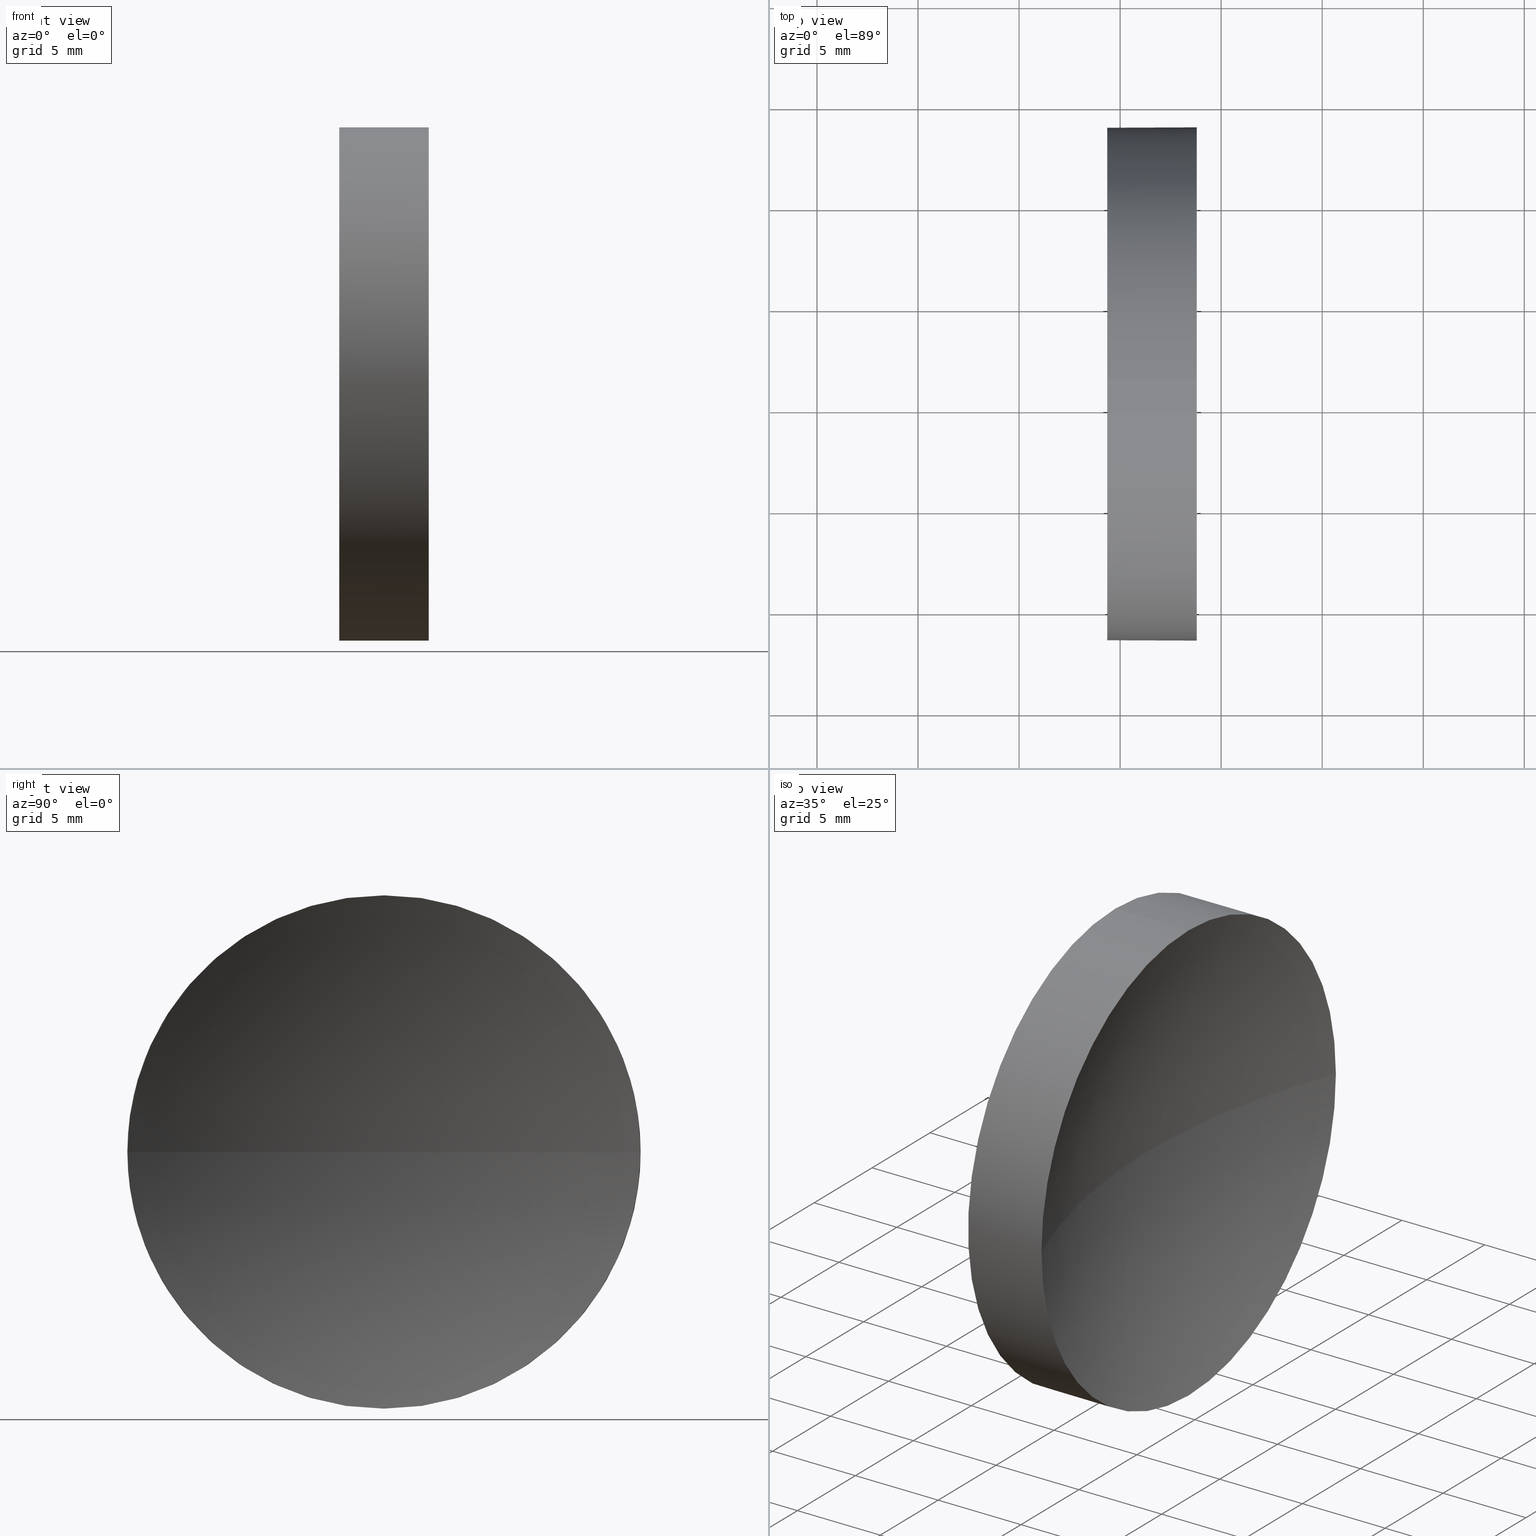
[diagram: canonical four-view strip — front | top / right | iso, engineering-drawing reading convention]
A machine part, canonical four-view strip (front | top / right | iso — engineering-drawing reading convention). The complete STEP part file that produces these views, byte-faithful:
ISO-10303-21;
HEADER;
FILE_DESCRIPTION (( 'STEP AP214' ),
    '1' );
FILE_NAME ('120266.STEP',
    '2019-06-25T03:13:47',
    ( '' ),
    ( '' ),
    'SwSTEP 2.0',
    'SolidWorks 2016',
    '' );
FILE_SCHEMA (( 'AUTOMOTIVE_DESIGN' ));
ENDSEC;

DATA;
#1 = ADVANCED_FACE ( 'NONE', ( #50 ), #66, .T. ) ;
#2 = CARTESIAN_POINT ( 'NONE',  ( 123.7938616566546800, 83.89398908659370600, 1.555301434917136700E-015 ) ) ;
#3 = SURFACE_SIDE_STYLE ('',( #171 ) ) ;
#4 = ORIENTED_EDGE ( 'NONE', *, *, #28, .F. ) ;
#5 = SPHERICAL_SURFACE ( 'NONE', #38, 34.38999999999999300 ) ;
#6 = PRESENTATION_LAYER_ASSIGNMENT (  '', '', ( #34 ) ) ;
#7 = VERTEX_POINT ( 'NONE', #57 ) ;
#8 = AXIS2_PLACEMENT_3D ( 'NONE', #119, #133, #65 ) ;
#9 = DIRECTION ( 'NONE',  ( -1.000000000000000000, -0.0000000000000000000, -0.0000000000000000000 ) ) ;
#10 = LINE ( 'NONE', #165, #155 ) ;
#11 = DIRECTION ( 'NONE',  ( 0.0000000000000000000, 0.0000000000000000000, 1.000000000000000000 ) ) ;
#12 = AXIS2_PLACEMENT_3D ( 'NONE', #39, #172, #85 ) ;
#13 = CARTESIAN_POINT ( 'NONE',  ( 155.7529307920347000, 71.19398908659371700, 0.0000000000000000000 ) ) ;
#14 = DIRECTION ( 'NONE',  ( -1.000000000000000000, -0.0000000000000000000, -0.0000000000000000000 ) ) ;
#15 = VERTEX_POINT ( 'NONE', #159 ) ;
#16 = APPLICATION_PROTOCOL_DEFINITION ( 'draft international standard', 'automotive_design', 1998, #123 ) ;
#17 = CIRCLE ( 'NONE', #76, 12.70000000000000300 ) ;
#18 = CARTESIAN_POINT ( 'NONE',  ( 111.9552297575605700, 71.19398908659370300, 0.0000000000000000000 ) ) ;
#19 = PRODUCT_DEFINITION_SHAPE ( 'NONE', 'NONE',  #177 ) ;
#20 =( LENGTH_UNIT ( ) NAMED_UNIT ( * ) SI_UNIT ( .MILLI., .METRE. ) );
#21 = EDGE_LOOP ( 'NONE', ( #102, #148 ) ) ;
#22 = CIRCLE ( 'NONE', #131, 12.70000000000000300 ) ;
#23 = AXIS2_PLACEMENT_3D ( 'NONE', #18, #114, #144 ) ;
#24 = EDGE_CURVE ( 'NONE', #15, #132, #129, .T. ) ;
#25 = ORIENTED_EDGE ( 'NONE', *, *, #126, .F. ) ;
#26 = CARTESIAN_POINT ( 'NONE',  ( 111.9552297575605700, 71.19398908659370300, -12.70000000000000300 ) ) ;
#27 = CARTESIAN_POINT ( 'NONE',  ( 155.7529307920347000, 71.19398908659371700, 0.0000000000000000000 ) ) ;
#28 = EDGE_CURVE ( 'NONE', #7, #118, #22, .T. ) ;
#29 = PLANE ( 'NONE',  #8 ) ;
#30 = CARTESIAN_POINT ( 'NONE',  ( 123.7938616566546800, 71.19398908659370300, 12.70000000000000300 ) ) ;
#31 = DIRECTION ( 'NONE',  ( -1.000000000000000000, -0.0000000000000000000, -0.0000000000000000000 ) ) ;
#32 = PRODUCT_CONTEXT ( 'NONE', #96, 'mechanical' ) ;
#33 = CIRCLE ( 'NONE', #173, 12.70000000000000300 ) ;
#34 = STYLED_ITEM ( 'NONE', ( #92 ), #48 ) ;
#35 = CARTESIAN_POINT ( 'NONE',  ( 111.9552297575605700, 71.19398908659370300, 0.0000000000000000000 ) ) ;
#36 = ORIENTED_EDGE ( 'NONE', *, *, #150, .T. ) ;
#37 = STYLED_ITEM ( 'NONE', ( #101 ), #103 ) ;
#38 = AXIS2_PLACEMENT_3D ( 'NONE', #27, #120, #64 ) ;
#39 = CARTESIAN_POINT ( 'NONE',  ( 0.0000000000000000000, 0.0000000000000000000, 0.0000000000000000000 ) ) ;
#40 = CARTESIAN_POINT ( 'NONE',  ( 121.3629307920347000, 71.19398908659371700, 0.0000000000000000000 ) ) ;
#41 = ORIENTED_EDGE ( 'NONE', *, *, #182, .T. ) ;
#42 =( NAMED_UNIT ( * ) SI_UNIT ( $, .STERADIAN. ) SOLID_ANGLE_UNIT ( ) );
#43 = CIRCLE ( 'NONE', #130, 34.38999999999999300 ) ;
#44 = ORIENTED_EDGE ( 'NONE', *, *, #126, .T. ) ;
#45 = AXIS2_PLACEMENT_3D ( 'NONE', #54, #67, #167 ) ;
#46 = CIRCLE ( 'NONE', #55, 12.70000000000000300 ) ;
#47 = AXIS2_PLACEMENT_3D ( 'NONE', #35, #74, #146 ) ;
#48 = MANIFOLD_SOLID_BREP ( '��ת1', #56 ) ;
#49 = VERTEX_POINT ( 'NONE', #2 ) ;
#50 = FACE_OUTER_BOUND ( 'NONE', #60, .T. ) ;
#51 = SHAPE_DEFINITION_REPRESENTATION ( #19, #103 ) ;
#52 = CIRCLE ( 'NONE', #112, 34.38999999999999300 ) ;
#53 = DIRECTION ( 'NONE',  ( -1.000000000000000000, -0.0000000000000000000, -0.0000000000000000000 ) ) ;
#54 = CARTESIAN_POINT ( 'NONE',  ( 119.3629307920347200, 71.19398908659370300, 0.0000000000000000000 ) ) ;
#55 = AXIS2_PLACEMENT_3D ( 'NONE', #78, #9, #138 ) ;
#56 = CLOSED_SHELL ( 'NONE', ( #75, #156, #128, #1, #161 ) ) ;
#57 = CARTESIAN_POINT ( 'NONE',  ( 123.7938616566546800, 71.19398908659370300, -12.70000000000000300 ) ) ;
#58 = ORIENTED_EDGE ( 'NONE', *, *, #59, .F. ) ;
#59 = EDGE_CURVE ( 'NONE', #118, #163, #33, .T. ) ;
#60 = EDGE_LOOP ( 'NONE', ( #106, #115, #143, #98, #121 ) ) ;
#61 = UNCERTAINTY_MEASURE_WITH_UNIT (LENGTH_MEASURE( 1.000000000000000100E-005 ), #104, 'distance_accuracy_value', 'NONE');
#62 = FACE_OUTER_BOUND ( 'NONE', #136, .T. ) ;
#63 =( GEOMETRIC_REPRESENTATION_CONTEXT ( 3 ) GLOBAL_UNCERTAINTY_ASSIGNED_CONTEXT ( ( #61 ) ) GLOBAL_UNIT_ASSIGNED_CONTEXT ( ( #104, #149, #69 ) ) REPRESENTATION_CONTEXT ( 'NONE', 'WORKASPACE' ) );
#64 = DIRECTION ( 'NONE',  ( 0.0000000000000000000, -1.000000000000000000, 0.0000000000000000000 ) ) ;
#65 = DIRECTION ( 'NONE',  ( 0.0000000000000000000, 0.0000000000000000000, -1.000000000000000000 ) ) ;
#66 = CYLINDRICAL_SURFACE ( 'NONE', #47, 12.70000000000000300 ) ;
#67 = DIRECTION ( 'NONE',  ( -1.000000000000000000, -0.0000000000000000000, -0.0000000000000000000 ) ) ;
#68 = CARTESIAN_POINT ( 'NONE',  ( 123.7938616566546800, 71.19398908659370300, 0.0000000000000000000 ) ) ;
#69 =( NAMED_UNIT ( * ) SI_UNIT ( $, .STERADIAN. ) SOLID_ANGLE_UNIT ( ) );
#70 = SURFACE_STYLE_FILL_AREA ( #170 ) ;
#71 = EDGE_LOOP ( 'NONE', ( #164, #44, #89, #4 ) ) ;
#72 = CARTESIAN_POINT ( 'NONE',  ( 119.3629307920347200, 71.19398908659370300, 0.0000000000000000000 ) ) ;
#73 = AXIS2_PLACEMENT_3D ( 'NONE', #72, #99, #145 ) ;
#74 = DIRECTION ( 'NONE',  ( -1.000000000000000000, -0.0000000000000000000, -0.0000000000000000000 ) ) ;
#75 = ADVANCED_FACE ( 'NONE', ( #62 ), #86, .T. ) ;
#76 = AXIS2_PLACEMENT_3D ( 'NONE', #68, #53, #81 ) ;
#77 = CARTESIAN_POINT ( 'NONE',  ( 155.7529307920347000, 71.19398908659371700, 0.0000000000000000000 ) ) ;
#78 = CARTESIAN_POINT ( 'NONE',  ( 123.7938616566546800, 71.19398908659370300, 0.0000000000000000000 ) ) ;
#79 = CIRCLE ( 'NONE', #45, 12.70000000000000300 ) ;
#80 = EDGE_CURVE ( 'NONE', #118, #154, #43, .T. ) ;
#81 = DIRECTION ( 'NONE',  ( 0.0000000000000000000, 0.0000000000000000000, 1.000000000000000000 ) ) ;
#82 = UNCERTAINTY_MEASURE_WITH_UNIT (LENGTH_MEASURE( 1.000000000000000100E-005 ), #186, 'distance_accuracy_value', 'NONE');
#83 = SURFACE_SIDE_STYLE ('',( #70 ) ) ;
#84 = ORIENTED_EDGE ( 'NONE', *, *, #182, .F. ) ;
#85 = DIRECTION ( 'NONE',  ( 1.000000000000000000, 0.0000000000000000000, 0.0000000000000000000 ) ) ;
#86 = CYLINDRICAL_SURFACE ( 'NONE', #23, 12.70000000000000300 ) ;
#87 =( NAMED_UNIT ( * ) SI_UNIT ( $, .STERADIAN. ) SOLID_ANGLE_UNIT ( ) );
#88 = DIRECTION ( 'NONE',  ( -1.000000000000000000, -0.0000000000000000000, -0.0000000000000000000 ) ) ;
#89 = ORIENTED_EDGE ( 'NONE', *, *, #80, .F. ) ;
#90 = SPHERICAL_SURFACE ( 'NONE', #140, 34.38999999999999300 ) ;
#91 = PRESENTATION_LAYER_ASSIGNMENT (  '', '', ( #37 ) ) ;
#92 = PRESENTATION_STYLE_ASSIGNMENT (( #100 ) ) ;
#93 = DIRECTION ( 'NONE',  ( -1.000000000000000000, -0.0000000000000000000, -0.0000000000000000000 ) ) ;
#94 = ORIENTED_EDGE ( 'NONE', *, *, #80, .T. ) ;
#95 = DIRECTION ( 'NONE',  ( 0.0000000000000000000, -1.000000000000000000, -1.224646799147353000E-016 ) ) ;
#96 = APPLICATION_CONTEXT ( 'automotive_design' ) ;
#97 = APPLICATION_PROTOCOL_DEFINITION ( 'draft international standard', 'automotive_design', 1998, #96 ) ;
#98 = ORIENTED_EDGE ( 'NONE', *, *, #168, .T. ) ;
#99 = DIRECTION ( 'NONE',  ( -1.000000000000000000, -0.0000000000000000000, -0.0000000000000000000 ) ) ;
#100 = SURFACE_STYLE_USAGE ( .BOTH. , #3 ) ;
#101 = PRESENTATION_STYLE_ASSIGNMENT (( #153 ) ) ;
#102 = ORIENTED_EDGE ( 'NONE', *, *, #179, .T. ) ;
#103 = ADVANCED_BREP_SHAPE_REPRESENTATION ( '120266', ( #48, #12 ), #63 ) ;
#104 =( LENGTH_UNIT ( ) NAMED_UNIT ( * ) SI_UNIT ( .MILLI., .METRE. ) );
#105 =( GEOMETRIC_REPRESENTATION_CONTEXT ( 3 ) GLOBAL_UNCERTAINTY_ASSIGNED_CONTEXT ( ( #82 ) ) GLOBAL_UNIT_ASSIGNED_CONTEXT ( ( #186, #122, #42 ) ) REPRESENTATION_CONTEXT ( 'NONE', 'WORKASPACE' ) );
#106 = ORIENTED_EDGE ( 'NONE', *, *, #150, .F. ) ;
#107 = DIRECTION ( 'NONE',  ( 0.0000000000000000000, -1.224646799147353200E-016, 1.000000000000000000 ) ) ;
#108 = PRODUCT ( '120266', '120266', '', ( #32 ) ) ;
#109 = EDGE_CURVE ( 'NONE', #49, #7, #17, .T. ) ;
#110 = CARTESIAN_POINT ( 'NONE',  ( 119.3629307920347200, 71.19398908659370300, 12.70000000000000300 ) ) ;
#111 = COLOUR_RGB ( '',1.000000000000000000, 1.000000000000000000, 1.000000000000000000 ) ;
#112 = AXIS2_PLACEMENT_3D ( 'NONE', #13, #107, #95 ) ;
#113 = VECTOR ( 'NONE', #14, 1000.000000000000000 ) ;
#114 = DIRECTION ( 'NONE',  ( -1.000000000000000000, -0.0000000000000000000, -0.0000000000000000000 ) ) ;
#115 = ORIENTED_EDGE ( 'NONE', *, *, #28, .T. ) ;
#116 = PRODUCT_RELATED_PRODUCT_CATEGORY ( 'part', '', ( #108 ) ) ;
#117 = ORIENTED_EDGE ( 'NONE', *, *, #109, .T. ) ;
#118 = VERTEX_POINT ( 'NONE', #169 ) ;
#119 = CARTESIAN_POINT ( 'NONE',  ( 119.3629307920347200, 71.19398908659370300, 0.0000000000000000000 ) ) ;
#120 = DIRECTION ( 'NONE',  ( 0.0000000000000000000, 0.0000000000000000000, 1.000000000000000000 ) ) ;
#121 = ORIENTED_EDGE ( 'NONE', *, *, #24, .F. ) ;
#122 =( NAMED_UNIT ( * ) PLANE_ANGLE_UNIT ( ) SI_UNIT ( $, .RADIAN. ) );
#123 = APPLICATION_CONTEXT ( 'automotive_design' ) ;
#124 = FACE_OUTER_BOUND ( 'NONE', #71, .T. ) ;
#125 = PRODUCT_DEFINITION_CONTEXT ( 'detailed design', #123, 'design' ) ;
#126 = EDGE_CURVE ( 'NONE', #49, #154, #52, .T. ) ;
#127 = FILL_AREA_STYLE ('',( #175 ) ) ;
#128 = ADVANCED_FACE ( 'NONE', ( #166 ), #5, .F. ) ;
#129 = CIRCLE ( 'NONE', #73, 12.70000000000000300 ) ;
#130 = AXIS2_PLACEMENT_3D ( 'NONE', #184, #181, #185 ) ;
#131 = AXIS2_PLACEMENT_3D ( 'NONE', #176, #88, #157 ) ;
#132 = VERTEX_POINT ( 'NONE', #110 ) ;
#133 = DIRECTION ( 'NONE',  ( 1.000000000000000000, 0.0000000000000000000, 0.0000000000000000000 ) ) ;
#134 = MECHANICAL_DESIGN_GEOMETRIC_PRESENTATION_REPRESENTATION (  '', ( #37 ), #105 ) ;
#135 = FILL_AREA_STYLE_COLOUR ( '', #111 ) ;
#136 = EDGE_LOOP ( 'NONE', ( #117, #36, #174, #160, #41 ) ) ;
#137 = MECHANICAL_DESIGN_GEOMETRIC_PRESENTATION_REPRESENTATION (  '', ( #34 ), #141 ) ;
#138 = DIRECTION ( 'NONE',  ( 0.0000000000000000000, 0.0000000000000000000, 1.000000000000000000 ) ) ;
#139 = UNCERTAINTY_MEASURE_WITH_UNIT (LENGTH_MEASURE( 1.000000000000000100E-005 ), #20, 'distance_accuracy_value', 'NONE');
#140 = AXIS2_PLACEMENT_3D ( 'NONE', #77, #180, #152 ) ;
#141 =( GEOMETRIC_REPRESENTATION_CONTEXT ( 3 ) GLOBAL_UNCERTAINTY_ASSIGNED_CONTEXT ( ( #139 ) ) GLOBAL_UNIT_ASSIGNED_CONTEXT ( ( #20, #142, #87 ) ) REPRESENTATION_CONTEXT ( 'NONE', 'WORKASPACE' ) );
#142 =( NAMED_UNIT ( * ) PLANE_ANGLE_UNIT ( ) SI_UNIT ( $, .RADIAN. ) );
#143 = ORIENTED_EDGE ( 'NONE', *, *, #59, .T. ) ;
#144 = DIRECTION ( 'NONE',  ( 0.0000000000000000000, 0.0000000000000000000, 1.000000000000000000 ) ) ;
#145 = DIRECTION ( 'NONE',  ( 0.0000000000000000000, 0.0000000000000000000, 1.000000000000000000 ) ) ;
#146 = DIRECTION ( 'NONE',  ( 0.0000000000000000000, 0.0000000000000000000, 1.000000000000000000 ) ) ;
#147 = PRODUCT_DEFINITION_FORMATION_WITH_SPECIFIED_SOURCE ( '�κ�', '', #108, .NOT_KNOWN. ) ;
#148 = ORIENTED_EDGE ( 'NONE', *, *, #24, .T. ) ;
#149 =( NAMED_UNIT ( * ) PLANE_ANGLE_UNIT ( ) SI_UNIT ( $, .RADIAN. ) );
#150 = EDGE_CURVE ( 'NONE', #7, #15, #151, .T. ) ;
#151 = LINE ( 'NONE', #26, #113 ) ;
#152 = DIRECTION ( 'NONE',  ( 0.0000000000000000000, -1.000000000000000000, 0.0000000000000000000 ) ) ;
#153 = SURFACE_STYLE_USAGE ( .BOTH. , #83 ) ;
#154 = VERTEX_POINT ( 'NONE', #40 ) ;
#155 = VECTOR ( 'NONE', #93, 1000.000000000000000 ) ;
#156 = ADVANCED_FACE ( 'NONE', ( #124 ), #90, .F. ) ;
#157 = DIRECTION ( 'NONE',  ( 0.0000000000000000000, 0.0000000000000000000, 1.000000000000000000 ) ) ;
#158 = CARTESIAN_POINT ( 'NONE',  ( 123.7938616566546800, 71.19398908659370300, 0.0000000000000000000 ) ) ;
#159 = CARTESIAN_POINT ( 'NONE',  ( 119.3629307920347200, 71.19398908659370300, -12.70000000000000300 ) ) ;
#160 = ORIENTED_EDGE ( 'NONE', *, *, #168, .F. ) ;
#161 = ADVANCED_FACE ( 'NONE', ( #162 ), #29, .F. ) ;
#162 = FACE_OUTER_BOUND ( 'NONE', #21, .T. ) ;
#163 = VERTEX_POINT ( 'NONE', #30 ) ;
#164 = ORIENTED_EDGE ( 'NONE', *, *, #109, .F. ) ;
#165 = CARTESIAN_POINT ( 'NONE',  ( 111.9552297575605700, 71.19398908659370300, 12.70000000000000300 ) ) ;
#166 = FACE_OUTER_BOUND ( 'NONE', #183, .T. ) ;
#167 = DIRECTION ( 'NONE',  ( 0.0000000000000000000, 0.0000000000000000000, 1.000000000000000000 ) ) ;
#168 = EDGE_CURVE ( 'NONE', #163, #132, #10, .T. ) ;
#169 = CARTESIAN_POINT ( 'NONE',  ( 123.7938616566546800, 58.49398908659371400, 0.0000000000000000000 ) ) ;
#170 = FILL_AREA_STYLE ('',( #135 ) ) ;
#171 = SURFACE_STYLE_FILL_AREA ( #127 ) ;
#172 = DIRECTION ( 'NONE',  ( 0.0000000000000000000, 0.0000000000000000000, 1.000000000000000000 ) ) ;
#173 = AXIS2_PLACEMENT_3D ( 'NONE', #158, #31, #11 ) ;
#174 = ORIENTED_EDGE ( 'NONE', *, *, #179, .F. ) ;
#175 = FILL_AREA_STYLE_COLOUR ( '', #178 ) ;
#176 = CARTESIAN_POINT ( 'NONE',  ( 123.7938616566546800, 71.19398908659370300, 0.0000000000000000000 ) ) ;
#177 = PRODUCT_DEFINITION ( 'δ֪', '', #147, #125 ) ;
#178 = COLOUR_RGB ( '',1.000000000000000000, 1.000000000000000000, 1.000000000000000000 ) ;
#179 = EDGE_CURVE ( 'NONE', #132, #15, #79, .T. ) ;
#180 = DIRECTION ( 'NONE',  ( 0.0000000000000000000, 0.0000000000000000000, 1.000000000000000000 ) ) ;
#181 = DIRECTION ( 'NONE',  ( 0.0000000000000000000, 0.0000000000000000000, -1.000000000000000000 ) ) ;
#182 = EDGE_CURVE ( 'NONE', #163, #49, #46, .T. ) ;
#183 = EDGE_LOOP ( 'NONE', ( #25, #84, #58, #94 ) ) ;
#184 = CARTESIAN_POINT ( 'NONE',  ( 155.7529307920347000, 71.19398908659371700, 0.0000000000000000000 ) ) ;
#185 = DIRECTION ( 'NONE',  ( -1.000000000000000000, 0.0000000000000000000, 0.0000000000000000000 ) ) ;
#186 =( LENGTH_UNIT ( ) NAMED_UNIT ( * ) SI_UNIT ( .MILLI., .METRE. ) );
ENDSEC;
END-ISO-10303-21;
